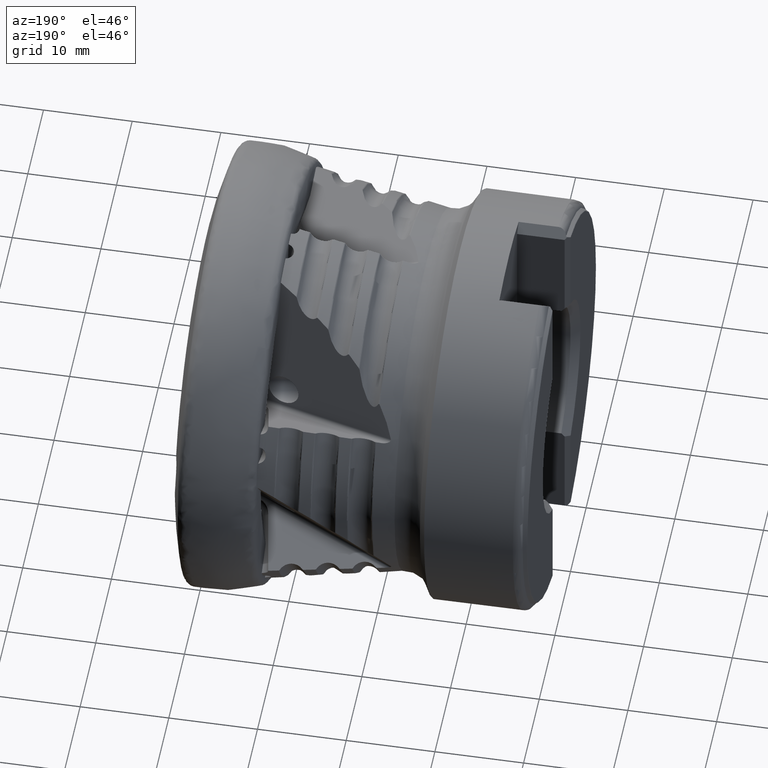
[diagram: clean part render]
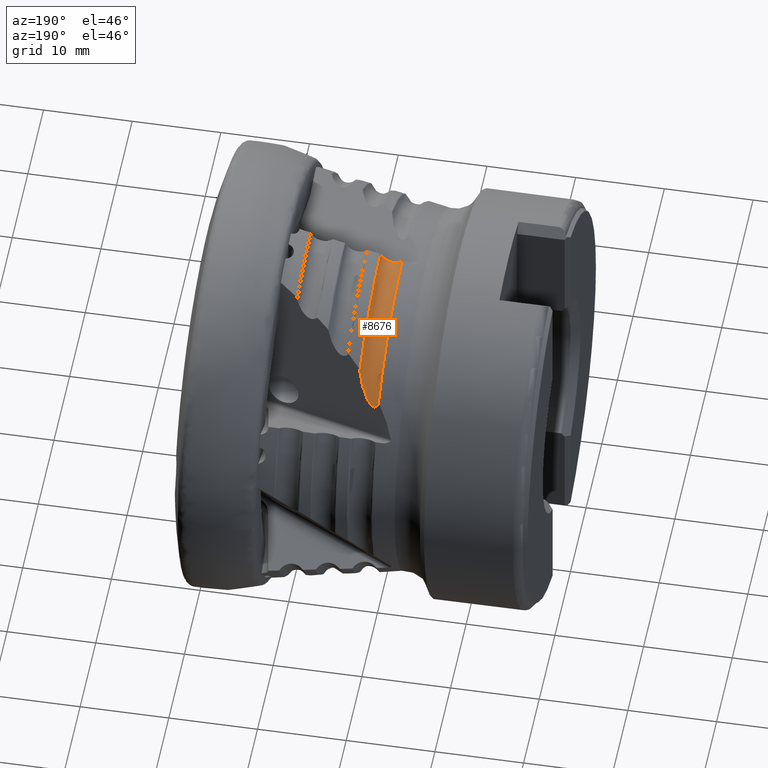
[diagram: same view with one face highlighted and labeled with its STEP entity id]
A machine part, auxiliary view. The second image highlights one B-rep face of the part: STEP entity #8676.
In plain terms, the highlighted toroidal blend (fillet) surface has major radius 21.7722 mm and minor (blend) radius 1.5 mm.
Its self-contained STEP definition (entity closure, byte-faithful):
#3 = EDGE_CURVE ( 'NONE', #9037, #10770, #4657, .T. ) ;
#6 = CARTESIAN_POINT ( 'NONE',  ( -19.65085442394367700, 15.17482012392522100, 13.51788229020422700 ) ) ;
#199 = CARTESIAN_POINT ( 'NONE',  ( -21.13087859951962200, 0.6756614555643808400, 20.72110104847211400 ) ) ;
#240 = CARTESIAN_POINT ( 'NONE',  ( -19.55356525300312900, 0.5653649618065572600, 20.34362832198782900 ) ) ;
#648 = CARTESIAN_POINT ( 'NONE',  ( -20.00584397426211000, 15.49712896706738300, 13.06822014505766600 ) ) ;
#688 = CARTESIAN_POINT ( 'NONE',  ( -20.22751814450697300, 15.66086069041517200, 12.88612973713881400 ) ) ;
#998 = CARTESIAN_POINT ( 'NONE',  ( -19.55108847718180300, 15.06921480299823200, 13.68376209313205600 ) ) ;
#1156 = CARTESIAN_POINT ( 'NONE',  ( -19.22441376694030900, 0.5423484477397189100, 20.50673589963150400 ) ) ;
#1202 = DIRECTION ( 'NONE',  ( 1.000000000000000000, -0.0000000000000000000, -0.0000000000000000000 ) ) ;
#1280 = EDGE_CURVE ( 'NONE', #10656, #2943, #6007, .T. ) ;
#1440 = CARTESIAN_POINT ( 'NONE',  ( -19.12610647228367400, 14.56099298592370600, 14.54385353405561400 ) ) ;
#2054 = CARTESIAN_POINT ( 'NONE',  ( -21.04521597157618000, 0.6696713410895947000, 20.63222351761805100 ) ) ;
#2094 = CARTESIAN_POINT ( 'NONE',  ( -18.78083901876275900, 0.5113306797410203100, 20.92916356110578800 ) ) ;
#2311 = TOROIDAL_SURFACE ( 'NONE', #6996, 21.77216268164352200, 1.500000000000000900 ) ;
#2454 = CARTESIAN_POINT ( 'NONE',  ( -20.88994421487926100, 15.91278150411713800, 12.96614776318282100 ) ) ;
#2734 = CIRCLE ( 'NONE', #7957, 21.16081878406240700 ) ;
#2788 = ORIENTED_EDGE ( 'NONE', *, *, #3, .T. ) ;
#2829 = DIRECTION ( 'NONE',  ( -1.000000000000000000, 0.0000000000000000000, 0.0000000000000000000 ) ) ;
#2887 = ORIENTED_EDGE ( 'NONE', *, *, #10186, .T. ) ;
#2943 = VERTEX_POINT ( 'NONE', #8566 ) ;
#2970 = CARTESIAN_POINT ( 'NONE',  ( -20.74369515724399800, 0.6485869518087391500, 20.42632047912609000 ) ) ;
#3289 = CARTESIAN_POINT ( 'NONE',  ( -19.87804341494768700, 15.38883453124069200, 13.20974900599459200 ) ) ;
#3385 = ORIENTED_EDGE ( 'NONE', *, *, #1280, .T. ) ;
#3899 = CARTESIAN_POINT ( 'NONE',  ( -20.39959954093519600, 0.6245254423565334000, 20.29880322112197200 ) ) ;
#3961 = EDGE_LOOP ( 'NONE', ( #4070, #3385, #2887, #2788 ) ) ;
#4070 = ORIENTED_EDGE ( 'NONE', *, *, #8160, .T. ) ;
#4450 = CARTESIAN_POINT ( 'NONE',  ( -20.45537562409221600, 15.79057125499704000, 12.80043237166529300 ) ) ;
#4489 = CARTESIAN_POINT ( 'NONE',  ( -19.81895459237371100, 15.33512328647366200, 13.28475986227141600 ) ) ;
#4528 = CARTESIAN_POINT ( 'NONE',  ( -20.60850770007668900, 15.85462407167213800, 12.80363448125125800 ) ) ;
#4657 = B_SPLINE_CURVE_WITH_KNOTS ( 'NONE', 3,
 ( #9112, #11399, #5413, #1440, #7983, #998, #6, #4489, #3289, #648, #11492, #688, #11673, #4450, #9718, #4528, #9538, #8853, #2454, #10456, #8633, #9907 ),
 .UNSPECIFIED., .F., .F.,
 ( 4, 2, 2, 2, 2, 2, 2, 2, 2, 2, 4 ),
 ( 1.094619236508969400E-006, 0.001299611039574068400, 0.002598127459911627900, 0.003247385670080408000, 0.003572014775164794000, 0.003896643880249179500, 0.004221272985333566300, 0.004383587537875759100, 0.004545902090417951900, 0.004870531195502334800, 0.005195160300586718600 ),
 .UNSPECIFIED. ) ;
#4705 = CARTESIAN_POINT ( 'NONE',  ( -21.13087859951962200, 0.6756614555643808400, 20.72110104847211400 ) ) ;
#4798 = CARTESIAN_POINT ( 'NONE',  ( -20.03414151095267200, 0.5989701274207046600, 20.25841970260722700 ) ) ;
#4809 = CARTESIAN_POINT ( 'NONE',  ( -21.13087859951973600, 15.87583109684898400, 13.33336169343155000 ) ) ;
#5413 = CARTESIAN_POINT ( 'NONE',  ( -18.86667290376018300, 14.17302401292357100, 15.27327938588834200 ) ) ;
#5686 = CARTESIAN_POINT ( 'NONE',  ( -19.67118092968245700, 0.5735894511113203100, 20.30751806884419300 ) ) ;
#6007 = B_SPLINE_CURVE_WITH_KNOTS ( 'NONE', 3,
 ( #199, #2054, #8370, #2970, #9265, #3899, #10188, #4798, #11094, #5686, #240, #6582, #1156, #7491, #2094, #8409 ),
 .UNSPECIFIED., .F., .F.,
 ( 4, 2, 2, 2, 2, 2, 2, 4 ),
 ( 2.844655012511138700E-007, 0.0003657749391948037100, 0.0007312654128883562500, 0.001096755886581908800, 0.001462246360275461500, 0.001827736833969014200, 0.002193227307662566300, 0.002924208255049669900 ),
 .UNSPECIFIED. ) ;
#6574 = DIRECTION ( 'NONE',  ( 1.000000000000000000, -0.0000000000000000000, -0.0000000000000000000 ) ) ;
#6582 = CARTESIAN_POINT ( 'NONE',  ( -19.33122505335194000, 0.5498174204780680300, 20.44259699727285800 ) ) ;
#6624 = CARTESIAN_POINT ( 'NONE',  ( -21.13087859951954400, 0.0000000000000000000, 0.0000000000000000000 ) ) ;
#6996 = AXIS2_PLACEMENT_3D ( 'NONE', #8402, #6574, #9291 ) ;
#7052 = AXIS2_PLACEMENT_3D ( 'NONE', #6624, #1202, #7547 ) ;
#7491 = CARTESIAN_POINT ( 'NONE',  ( -18.93639870442812500, 0.5222084726265332500, 20.73161347362382800 ) ) ;
#7545 = CIRCLE ( 'NONE', #7052, 20.73211390725824500 ) ;
#7547 = DIRECTION ( 'NONE',  ( 0.0000000000000000000, 0.0000000000000000000, -1.000000000000000000 ) ) ;
#7957 = AXIS2_PLACEMENT_3D ( 'NONE', #8227, #2829, #9125 ) ;
#7983 = CARTESIAN_POINT ( 'NONE',  ( -19.27745170604901400, 14.75997390215157500, 14.19024392489348900 ) ) ;
#8160 = EDGE_CURVE ( 'NONE', #10770, #10656, #7545, .T. ) ;
#8227 = CARTESIAN_POINT ( 'NONE',  ( -18.68023409339748800, 0.0000000000000000000, 0.0000000000000000000 ) ) ;
#8370 = CARTESIAN_POINT ( 'NONE',  ( -20.95051883069533700, 0.6630494719276341900, 20.55566635139632900 ) ) ;
#8402 = CARTESIAN_POINT ( 'NONE',  ( -20.04999999999999400, 0.0000000000000000000, 0.0000000000000000000 ) ) ;
#8409 = CARTESIAN_POINT ( 'NONE',  ( -18.68023409339756900, 0.5042956980444175400, 21.15480884954680400 ) ) ;
#8566 = CARTESIAN_POINT ( 'NONE',  ( -18.68023409339756900, 0.5042956980444175400, 21.15480884954680400 ) ) ;
#8633 = CARTESIAN_POINT ( 'NONE',  ( -21.08237735780069100, 15.89251944710147400, 13.23511568788840600 ) ) ;
#8676 = ADVANCED_FACE ( 'NONE', ( #11630 ), #2311, .F. ) ;
#8853 = CARTESIAN_POINT ( 'NONE',  ( -20.80693782719592000, 15.90736125529330600, 12.88736415855587200 ) ) ;
#9037 = VERTEX_POINT ( 'NONE', #10968 ) ;
#9112 = CARTESIAN_POINT ( 'NONE',  ( -18.68023409339756600, 13.80191769943067100, 16.04017828548274200 ) ) ;
#9125 = DIRECTION ( 'NONE',  ( 0.0000000000000000000, 0.0000000000000000000, 1.000000000000000000 ) ) ;
#9265 = CARTESIAN_POINT ( 'NONE',  ( -20.63091348649846800, 0.6407004891278436100, 20.37380551052651300 ) ) ;
#9291 = DIRECTION ( 'NONE',  ( 0.0000000000000000000, 0.0000000000000000000, -1.000000000000000000 ) ) ;
#9538 = CARTESIAN_POINT ( 'NONE',  ( -20.66067471279050900, 15.87141026174392700, 12.81796407089023000 ) ) ;
#9718 = CARTESIAN_POINT ( 'NONE',  ( -20.50645473438361700, 15.81439389059768500, 12.79503945532839600 ) ) ;
#9907 = CARTESIAN_POINT ( 'NONE',  ( -21.13087859951973600, 15.87583109684898400, 13.33336169343155000 ) ) ;
#10186 = EDGE_CURVE ( 'NONE', #2943, #9037, #2734, .T. ) ;
#10188 = CARTESIAN_POINT ( 'NONE',  ( -20.27807802083025700, 0.6160278298730674800, 20.27521553609348000 ) ) ;
#10456 = CARTESIAN_POINT ( 'NONE',  ( -21.02732636422759800, 15.90504831226303200, 13.14046631139794200 ) ) ;
#10656 = VERTEX_POINT ( 'NONE', #4705 ) ;
#10770 = VERTEX_POINT ( 'NONE', #4809 ) ;
#10968 = CARTESIAN_POINT ( 'NONE',  ( -18.68023409339756600, 13.80191769943067100, 16.04017828548274200 ) ) ;
#11094 = CARTESIAN_POINT ( 'NONE',  ( -19.91276013581859400, 0.5904823148282616300, 20.26483082956700300 ) ) ;
#11399 = CARTESIAN_POINT ( 'NONE',  ( -18.75934362086437800, 13.98421130618226200, 15.64948530019301400 ) ) ;
#11492 = CARTESIAN_POINT ( 'NONE',  ( -20.07509251561745200, 15.55222622626965600, 13.00095201048096300 ) ) ;
#11630 = FACE_OUTER_BOUND ( 'NONE', #3961, .T. ) ;
#11673 = CARTESIAN_POINT ( 'NONE',  ( -20.31195397129169700, 15.71557199568753700, 12.83689901019161000 ) ) ;